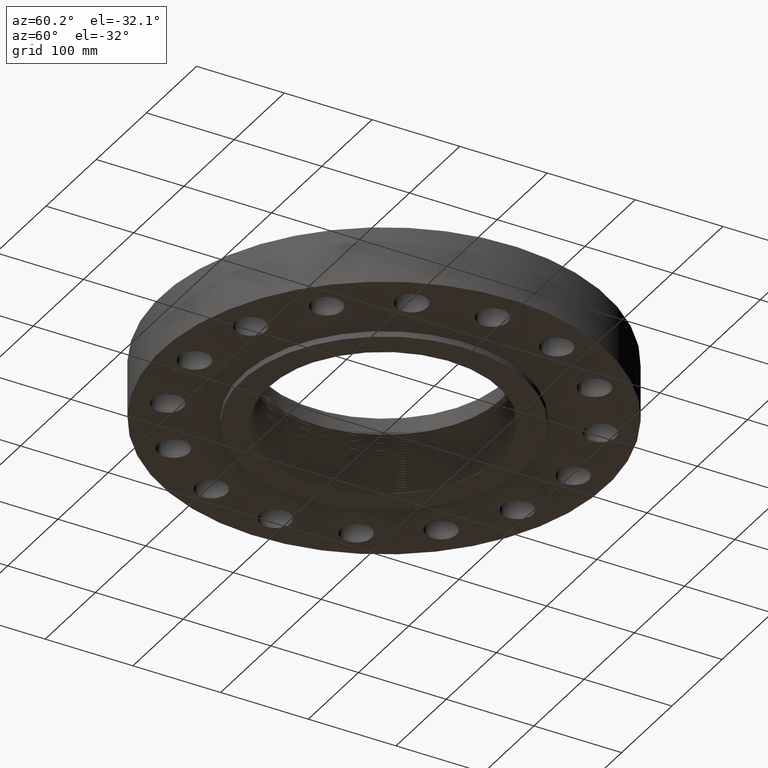
[diagram: clean part render]
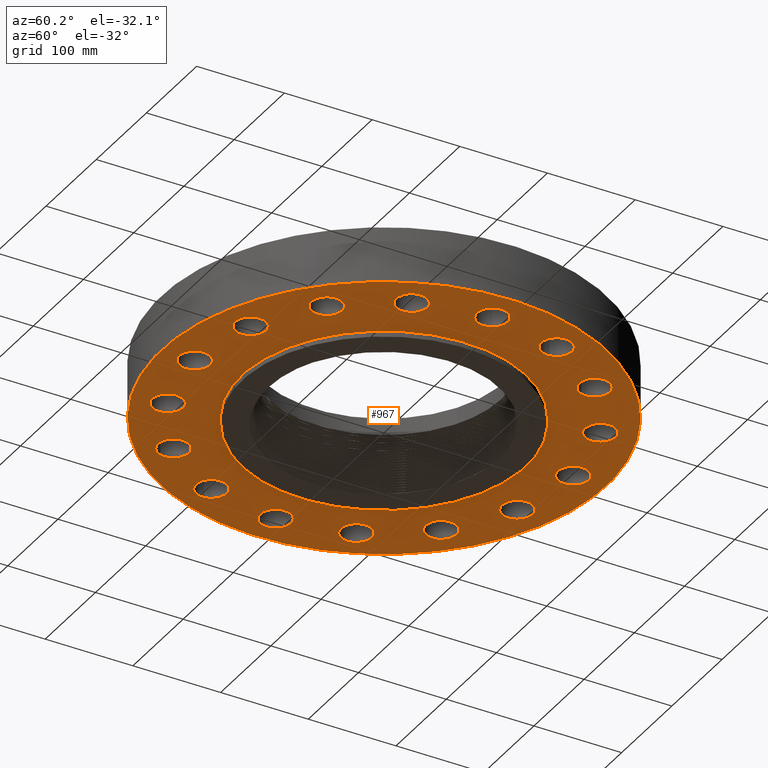
[diagram: same view with one face highlighted and labeled with its STEP entity id]
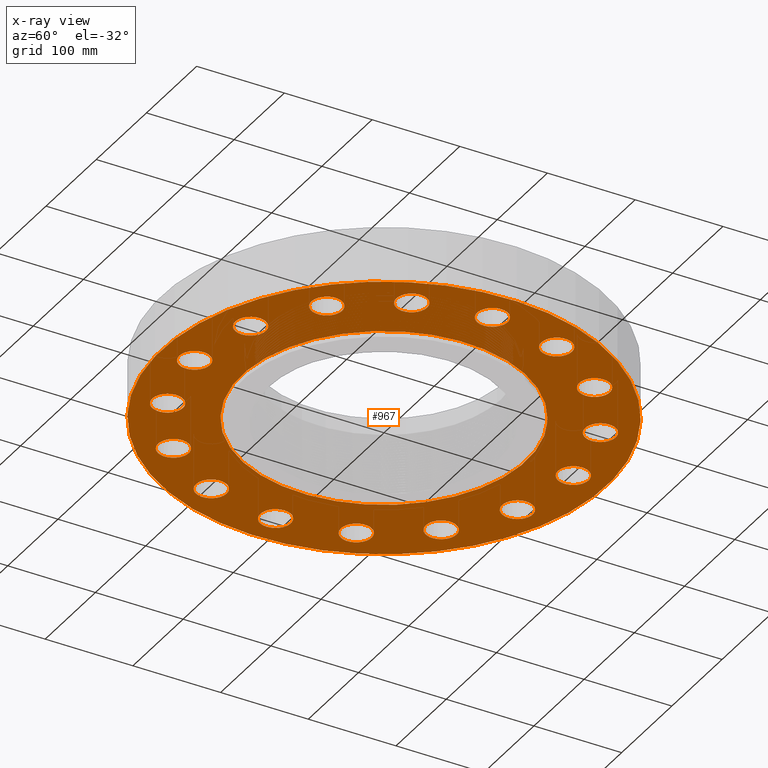
[diagram: x-ray of the same camera — body ghosted, the highlighted face saturated]
A machine part, auxiliary view. The second image highlights one B-rep face of the part: STEP entity #967.
The next image is the same camera in x-ray: the body ghosted, the highlighted face saturated — about 0% of this face is hidden behind the body in this view.
In plain terms, the highlighted planar face has unit normal (0, 0, -1).
Its self-contained STEP definition (entity closure, byte-faithful):
#396=AXIS2_PLACEMENT_3D('Circle Axis2P3D',#394,#395,$) ;
#422=AXIS2_PLACEMENT_3D('Circle Axis2P3D',#420,#421,$) ;
#444=AXIS2_PLACEMENT_3D('Circle Axis2P3D',#442,#443,$) ;
#479=AXIS2_PLACEMENT_3D('Circle Axis2P3D',#477,#478,$) ;
#651=AXIS2_PLACEMENT_3D('Circle Axis2P3D',#649,#650,$) ;
#670=AXIS2_PLACEMENT_3D('Circle Axis2P3D',#668,#669,$) ;
#683=AXIS2_PLACEMENT_3D('Plane Axis2P3D',#680,#681,#682) ;
#699=AXIS2_PLACEMENT_3D('Circle Axis2P3D',#697,#698,$) ;
#708=AXIS2_PLACEMENT_3D('Circle Axis2P3D',#706,#707,$) ;
#717=AXIS2_PLACEMENT_3D('Circle Axis2P3D',#715,#716,$) ;
#726=AXIS2_PLACEMENT_3D('Circle Axis2P3D',#724,#725,$) ;
#735=AXIS2_PLACEMENT_3D('Circle Axis2P3D',#733,#734,$) ;
#744=AXIS2_PLACEMENT_3D('Circle Axis2P3D',#742,#743,$) ;
#753=AXIS2_PLACEMENT_3D('Circle Axis2P3D',#751,#752,$) ;
#762=AXIS2_PLACEMENT_3D('Circle Axis2P3D',#760,#761,$) ;
#771=AXIS2_PLACEMENT_3D('Circle Axis2P3D',#769,#770,$) ;
#780=AXIS2_PLACEMENT_3D('Circle Axis2P3D',#778,#779,$) ;
#789=AXIS2_PLACEMENT_3D('Circle Axis2P3D',#787,#788,$) ;
#798=AXIS2_PLACEMENT_3D('Circle Axis2P3D',#796,#797,$) ;
#807=AXIS2_PLACEMENT_3D('Circle Axis2P3D',#805,#806,$) ;
#816=AXIS2_PLACEMENT_3D('Circle Axis2P3D',#814,#815,$) ;
#825=AXIS2_PLACEMENT_3D('Circle Axis2P3D',#823,#824,$) ;
#834=AXIS2_PLACEMENT_3D('Circle Axis2P3D',#832,#833,$) ;
#843=AXIS2_PLACEMENT_3D('Circle Axis2P3D',#841,#842,$) ;
#852=AXIS2_PLACEMENT_3D('Circle Axis2P3D',#850,#851,$) ;
#861=AXIS2_PLACEMENT_3D('Circle Axis2P3D',#859,#860,$) ;
#870=AXIS2_PLACEMENT_3D('Circle Axis2P3D',#868,#869,$) ;
#879=AXIS2_PLACEMENT_3D('Circle Axis2P3D',#877,#878,$) ;
#888=AXIS2_PLACEMENT_3D('Circle Axis2P3D',#886,#887,$) ;
#897=AXIS2_PLACEMENT_3D('Circle Axis2P3D',#895,#896,$) ;
#906=AXIS2_PLACEMENT_3D('Circle Axis2P3D',#904,#905,$) ;
#915=AXIS2_PLACEMENT_3D('Circle Axis2P3D',#913,#914,$) ;
#924=AXIS2_PLACEMENT_3D('Circle Axis2P3D',#922,#923,$) ;
#933=AXIS2_PLACEMENT_3D('Circle Axis2P3D',#931,#932,$) ;
#942=AXIS2_PLACEMENT_3D('Circle Axis2P3D',#940,#941,$) ;
#951=AXIS2_PLACEMENT_3D('Circle Axis2P3D',#949,#950,$) ;
#960=AXIS2_PLACEMENT_3D('Circle Axis2P3D',#958,#959,$) ;
#389=CARTESIAN_POINT('Vertex',(7.89446803233,0.330803621638,-2.79741234551E-016)) ;
#394=CARTESIAN_POINT('Axis2P3D Location',(8.50000000003,0.,0.)) ;
#398=CARTESIAN_POINT('Vertex',(9.10553196774,-0.330803621638,-2.79741234551E-016)) ;
#420=CARTESIAN_POINT('Axis2P3D Location',(8.50000000003,0.,0.)) ;
#442=CARTESIAN_POINT('Axis2P3D Location',(0.,0.,1.1189649382E-015)) ;
#446=CARTESIAN_POINT('Vertex',(-4.79425538606,-8.77582561894,1.1189649382E-015)) ;
#448=CARTESIAN_POINT('Vertex',(4.79425538606,8.77582561894,1.1189649382E-015)) ;
#477=CARTESIAN_POINT('Axis2P3D Location',(0.,0.,1.1189649382E-015)) ;
#646=CARTESIAN_POINT('Vertex',(-3.05633780861,-5.59458883207,5.59482469102E-016)) ;
#649=CARTESIAN_POINT('Axis2P3D Location',(0.,0.,8.39223703654E-016)) ;
#653=CARTESIAN_POINT('Vertex',(3.05633780861,5.59458883207,5.59482469102E-016)) ;
#668=CARTESIAN_POINT('Axis2P3D Location',(0.,0.,8.39223703654E-016)) ;
#680=CARTESIAN_POINT('Axis2P3D Location',(0.,6.37500000003,0.)) ;
#697=CARTESIAN_POINT('Axis2P3D Location',(7.85297602638,-3.25280917512,0.)) ;
#701=CARTESIAN_POINT('Vertex',(7.4201305005,-2.715459428,0.)) ;
#703=CARTESIAN_POINT('Vertex',(8.28582155226,-3.79015892224,-2.79741234551E-016)) ;
#706=CARTESIAN_POINT('Axis2P3D Location',(7.85297602638,-3.25280917512,0.)) ;
#715=CARTESIAN_POINT('Axis2P3D Location',(6.01040764011,-6.01040764011,0.)) ;
#719=CARTESIAN_POINT('Vertex',(5.81614536362,-5.34831839542,0.)) ;
#721=CARTESIAN_POINT('Vertex',(6.2046699166,-6.6724968848,-2.79741234551E-016)) ;
#724=CARTESIAN_POINT('Axis2P3D Location',(6.01040764011,-6.01040764011,0.)) ;
#733=CARTESIAN_POINT('Axis2P3D Location',(3.25280917512,-7.85297602638,0.)) ;
#737=CARTESIAN_POINT('Vertex',(3.32670481862,-7.16694436976,0.)) ;
#739=CARTESIAN_POINT('Vertex',(3.17891353161,-8.53900768299,-2.79741234551E-016)) ;
#742=CARTESIAN_POINT('Axis2P3D Location',(3.25280917512,-7.85297602638,0.)) ;
#751=CARTESIAN_POINT('Axis2P3D Location',(-9.79094320929E-016,-8.50000000003,0.)) ;
#755=CARTESIAN_POINT('Vertex',(0.330803621638,-7.89446803233,0.)) ;
#757=CARTESIAN_POINT('Vertex',(-0.330803621638,-9.10553196774,-2.79741234551E-016)) ;
#760=CARTESIAN_POINT('Axis2P3D Location',(-1.18890024684E-015,-8.50000000003,0.)) ;
#769=CARTESIAN_POINT('Axis2P3D Location',(-3.25280917512,-7.85297602638,0.)) ;
#773=CARTESIAN_POINT('Vertex',(-2.715459428,-7.4201305005,0.)) ;
#775=CARTESIAN_POINT('Vertex',(-3.79015892224,-8.28582155226,-2.79741234551E-016)) ;
#778=CARTESIAN_POINT('Axis2P3D Location',(-3.25280917512,-7.85297602638,0.)) ;
#787=CARTESIAN_POINT('Axis2P3D Location',(-6.01040764011,-6.01040764011,0.)) ;
#791=CARTESIAN_POINT('Vertex',(-5.34831839542,-5.81614536362,0.)) ;
#793=CARTESIAN_POINT('Vertex',(-6.6724968848,-6.2046699166,-2.79741234551E-016)) ;
#796=CARTESIAN_POINT('Axis2P3D Location',(-6.01040764011,-6.01040764011,0.)) ;
#805=CARTESIAN_POINT('Axis2P3D Location',(-7.85297602638,-3.25280917512,0.)) ;
#809=CARTESIAN_POINT('Vertex',(-7.16694436976,-3.32670481862,0.)) ;
#811=CARTESIAN_POINT('Vertex',(-8.53900768299,-3.17891353161,-2.79741234551E-016)) ;
#814=CARTESIAN_POINT('Axis2P3D Location',(-7.85297602638,-3.25280917512,0.)) ;
#823=CARTESIAN_POINT('Axis2P3D Location',(-8.50000000003,-1.1189649382E-015,0.)) ;
#827=CARTESIAN_POINT('Vertex',(-7.89446803233,-0.330803621638,0.)) ;
#829=CARTESIAN_POINT('Vertex',(-9.10553196774,0.330803621638,-2.79741234551E-016)) ;
#832=CARTESIAN_POINT('Axis2P3D Location',(-8.50000000003,-1.1189649382E-015,0.)) ;
#841=CARTESIAN_POINT('Axis2P3D Location',(-7.85297602638,3.25280917512,0.)) ;
#845=CARTESIAN_POINT('Vertex',(-7.4201305005,2.715459428,0.)) ;
#847=CARTESIAN_POINT('Vertex',(-8.28582155226,3.79015892224,-2.79741234551E-016)) ;
#850=CARTESIAN_POINT('Axis2P3D Location',(-7.85297602638,3.25280917512,0.)) ;
#859=CARTESIAN_POINT('Axis2P3D Location',(-6.01040764011,6.01040764011,0.)) ;
#863=CARTESIAN_POINT('Vertex',(-5.81614536362,5.34831839542,0.)) ;
#865=CARTESIAN_POINT('Vertex',(-6.2046699166,6.6724968848,-2.79741234551E-016)) ;
#868=CARTESIAN_POINT('Axis2P3D Location',(-6.01040764011,6.01040764011,0.)) ;
#877=CARTESIAN_POINT('Axis2P3D Location',(-3.25280917512,7.85297602638,0.)) ;
#881=CARTESIAN_POINT('Vertex',(-3.32670481862,7.16694436976,0.)) ;
#883=CARTESIAN_POINT('Vertex',(-3.17891353161,8.53900768299,-2.79741234551E-016)) ;
#886=CARTESIAN_POINT('Axis2P3D Location',(-3.25280917512,7.85297602638,0.)) ;
#895=CARTESIAN_POINT('Axis2P3D Location',(-5.59482469102E-016,8.50000000003,0.)) ;
#899=CARTESIAN_POINT('Vertex',(-0.330803621638,7.89446803233,0.)) ;
#901=CARTESIAN_POINT('Vertex',(0.330803621638,9.10553196774,-2.79741234551E-016)) ;
#904=CARTESIAN_POINT('Axis2P3D Location',(-2.79741234551E-016,8.50000000003,0.)) ;
#913=CARTESIAN_POINT('Axis2P3D Location',(3.25280917512,7.85297602638,0.)) ;
#917=CARTESIAN_POINT('Vertex',(2.715459428,7.4201305005,0.)) ;
#919=CARTESIAN_POINT('Vertex',(3.79015892224,8.28582155226,-2.51767111096E-015)) ;
#922=CARTESIAN_POINT('Axis2P3D Location',(3.25280917512,7.85297602638,0.)) ;
#931=CARTESIAN_POINT('Axis2P3D Location',(6.01040764011,6.01040764011,0.)) ;
#935=CARTESIAN_POINT('Vertex',(5.34831839542,5.81614536362,0.)) ;
#937=CARTESIAN_POINT('Vertex',(6.6724968848,6.2046699166,-2.79741234551E-016)) ;
#940=CARTESIAN_POINT('Axis2P3D Location',(6.01040764011,6.01040764011,0.)) ;
#949=CARTESIAN_POINT('Axis2P3D Location',(7.85297602638,3.25280917512,0.)) ;
#953=CARTESIAN_POINT('Vertex',(7.16694436976,3.32670481862,0.)) ;
#955=CARTESIAN_POINT('Vertex',(8.53900768299,3.17891353161,-2.79741234551E-016)) ;
#958=CARTESIAN_POINT('Axis2P3D Location',(7.85297602638,3.25280917512,0.)) ;
#395=DIRECTION('Axis2P3D Direction',(0.,-0.,-0.0393700787402)) ;
#421=DIRECTION('Axis2P3D Direction',(0.,-0.,-0.0393700787402)) ;
#443=DIRECTION('Axis2P3D Direction',(0.,0.,-0.0393700787402)) ;
#478=DIRECTION('Axis2P3D Direction',(0.,0.,-0.0393700787402)) ;
#650=DIRECTION('Axis2P3D Direction',(0.,0.,-0.0393700787402)) ;
#669=DIRECTION('Axis2P3D Direction',(0.,0.,-0.0393700787402)) ;
#681=DIRECTION('Axis2P3D Direction',(0.,0.,-0.0393700787402)) ;
#682=DIRECTION('Axis2P3D XDirection',(0.0393700787402,0.,0.)) ;
#698=DIRECTION('Axis2P3D Direction',(0.,0.,-0.0393700787402)) ;
#707=DIRECTION('Axis2P3D Direction',(0.,0.,-0.0393700787402)) ;
#716=DIRECTION('Axis2P3D Direction',(0.,0.,-0.0393700787402)) ;
#725=DIRECTION('Axis2P3D Direction',(0.,0.,-0.0393700787402)) ;
#734=DIRECTION('Axis2P3D Direction',(0.,0.,-0.0393700787402)) ;
#743=DIRECTION('Axis2P3D Direction',(0.,0.,-0.0393700787402)) ;
#752=DIRECTION('Axis2P3D Direction',(0.,0.,-0.0393700787402)) ;
#761=DIRECTION('Axis2P3D Direction',(0.,0.,-0.0393700787402)) ;
#770=DIRECTION('Axis2P3D Direction',(0.,0.,-0.0393700787402)) ;
#779=DIRECTION('Axis2P3D Direction',(0.,0.,-0.0393700787402)) ;
#788=DIRECTION('Axis2P3D Direction',(0.,0.,-0.0393700787402)) ;
#797=DIRECTION('Axis2P3D Direction',(0.,0.,-0.0393700787402)) ;
#806=DIRECTION('Axis2P3D Direction',(0.,0.,-0.0393700787402)) ;
#815=DIRECTION('Axis2P3D Direction',(0.,0.,-0.0393700787402)) ;
#824=DIRECTION('Axis2P3D Direction',(0.,0.,-0.0393700787402)) ;
#833=DIRECTION('Axis2P3D Direction',(0.,0.,-0.0393700787402)) ;
#842=DIRECTION('Axis2P3D Direction',(0.,0.,-0.0393700787402)) ;
#851=DIRECTION('Axis2P3D Direction',(0.,0.,-0.0393700787402)) ;
#860=DIRECTION('Axis2P3D Direction',(0.,0.,-0.0393700787402)) ;
#869=DIRECTION('Axis2P3D Direction',(0.,0.,-0.0393700787402)) ;
#878=DIRECTION('Axis2P3D Direction',(0.,0.,-0.0393700787402)) ;
#887=DIRECTION('Axis2P3D Direction',(0.,0.,-0.0393700787402)) ;
#896=DIRECTION('Axis2P3D Direction',(0.,0.,-0.0393700787402)) ;
#905=DIRECTION('Axis2P3D Direction',(0.,0.,-0.0393700787402)) ;
#914=DIRECTION('Axis2P3D Direction',(0.,0.,-0.0393700787402)) ;
#923=DIRECTION('Axis2P3D Direction',(0.,0.,-0.0393700787402)) ;
#932=DIRECTION('Axis2P3D Direction',(0.,0.,-0.0393700787402)) ;
#941=DIRECTION('Axis2P3D Direction',(0.,0.,-0.0393700787402)) ;
#950=DIRECTION('Axis2P3D Direction',(0.,0.,-0.0393700787402)) ;
#959=DIRECTION('Axis2P3D Direction',(0.,0.,-0.0393700787402)) ;
#686=ORIENTED_EDGE('',*,*,#450,.T.) ;
#687=ORIENTED_EDGE('',*,*,#481,.T.) ;
#690=ORIENTED_EDGE('',*,*,#424,.F.) ;
#691=ORIENTED_EDGE('',*,*,#400,.F.) ;
#694=ORIENTED_EDGE('',*,*,#672,.F.) ;
#695=ORIENTED_EDGE('',*,*,#655,.F.) ;
#712=ORIENTED_EDGE('',*,*,#705,.F.) ;
#713=ORIENTED_EDGE('',*,*,#710,.F.) ;
#730=ORIENTED_EDGE('',*,*,#723,.F.) ;
#731=ORIENTED_EDGE('',*,*,#728,.F.) ;
#748=ORIENTED_EDGE('',*,*,#741,.F.) ;
#749=ORIENTED_EDGE('',*,*,#746,.F.) ;
#766=ORIENTED_EDGE('',*,*,#759,.F.) ;
#767=ORIENTED_EDGE('',*,*,#764,.F.) ;
#784=ORIENTED_EDGE('',*,*,#777,.F.) ;
#785=ORIENTED_EDGE('',*,*,#782,.F.) ;
#802=ORIENTED_EDGE('',*,*,#795,.F.) ;
#803=ORIENTED_EDGE('',*,*,#800,.F.) ;
#820=ORIENTED_EDGE('',*,*,#813,.F.) ;
#821=ORIENTED_EDGE('',*,*,#818,.F.) ;
#838=ORIENTED_EDGE('',*,*,#831,.F.) ;
#839=ORIENTED_EDGE('',*,*,#836,.F.) ;
#856=ORIENTED_EDGE('',*,*,#849,.F.) ;
#857=ORIENTED_EDGE('',*,*,#854,.F.) ;
#874=ORIENTED_EDGE('',*,*,#867,.F.) ;
#875=ORIENTED_EDGE('',*,*,#872,.F.) ;
#892=ORIENTED_EDGE('',*,*,#885,.F.) ;
#893=ORIENTED_EDGE('',*,*,#890,.F.) ;
#910=ORIENTED_EDGE('',*,*,#903,.F.) ;
#911=ORIENTED_EDGE('',*,*,#908,.F.) ;
#928=ORIENTED_EDGE('',*,*,#921,.F.) ;
#929=ORIENTED_EDGE('',*,*,#926,.F.) ;
#946=ORIENTED_EDGE('',*,*,#939,.F.) ;
#947=ORIENTED_EDGE('',*,*,#944,.F.) ;
#964=ORIENTED_EDGE('',*,*,#957,.F.) ;
#965=ORIENTED_EDGE('',*,*,#962,.F.) ;
#692=FACE_BOUND('',#689,.T.) ;
#696=FACE_BOUND('',#693,.T.) ;
#714=FACE_BOUND('',#711,.T.) ;
#732=FACE_BOUND('',#729,.T.) ;
#750=FACE_BOUND('',#747,.T.) ;
#768=FACE_BOUND('',#765,.T.) ;
#786=FACE_BOUND('',#783,.T.) ;
#804=FACE_BOUND('',#801,.T.) ;
#822=FACE_BOUND('',#819,.T.) ;
#840=FACE_BOUND('',#837,.T.) ;
#858=FACE_BOUND('',#855,.T.) ;
#876=FACE_BOUND('',#873,.T.) ;
#894=FACE_BOUND('',#891,.T.) ;
#912=FACE_BOUND('',#909,.T.) ;
#930=FACE_BOUND('',#927,.T.) ;
#948=FACE_BOUND('',#945,.T.) ;
#966=FACE_BOUND('',#963,.T.) ;
#967=ADVANCED_FACE('PartBody',(#688,#692,#696,#714,#732,#750,#768,#786,#804,#822,#840,#858,#876,#894,#912,#930,#948,#966),#684,.T.) ;
#397=CIRCLE('generated circle',#396,0.690000000003) ;
#423=CIRCLE('generated circle',#422,0.690000000003) ;
#445=CIRCLE('generated circle',#444,10.) ;
#480=CIRCLE('generated circle',#479,10.) ;
#652=CIRCLE('generated circle',#651,6.37500000003) ;
#671=CIRCLE('generated circle',#670,6.37500000003) ;
#700=CIRCLE('generated circle',#699,0.690000000003) ;
#709=CIRCLE('generated circle',#708,0.690000000003) ;
#718=CIRCLE('generated circle',#717,0.690000000003) ;
#727=CIRCLE('generated circle',#726,0.690000000003) ;
#736=CIRCLE('generated circle',#735,0.690000000003) ;
#745=CIRCLE('generated circle',#744,0.690000000003) ;
#754=CIRCLE('generated circle',#753,0.690000000003) ;
#763=CIRCLE('generated circle',#762,0.690000000003) ;
#772=CIRCLE('generated circle',#771,0.690000000003) ;
#781=CIRCLE('generated circle',#780,0.690000000003) ;
#790=CIRCLE('generated circle',#789,0.690000000003) ;
#799=CIRCLE('generated circle',#798,0.690000000003) ;
#808=CIRCLE('generated circle',#807,0.690000000003) ;
#817=CIRCLE('generated circle',#816,0.690000000003) ;
#826=CIRCLE('generated circle',#825,0.690000000003) ;
#835=CIRCLE('generated circle',#834,0.690000000003) ;
#844=CIRCLE('generated circle',#843,0.690000000003) ;
#853=CIRCLE('generated circle',#852,0.690000000003) ;
#862=CIRCLE('generated circle',#861,0.690000000003) ;
#871=CIRCLE('generated circle',#870,0.690000000003) ;
#880=CIRCLE('generated circle',#879,0.690000000003) ;
#889=CIRCLE('generated circle',#888,0.690000000003) ;
#898=CIRCLE('generated circle',#897,0.690000000003) ;
#907=CIRCLE('generated circle',#906,0.690000000003) ;
#916=CIRCLE('generated circle',#915,0.690000000003) ;
#925=CIRCLE('generated circle',#924,0.690000000003) ;
#934=CIRCLE('generated circle',#933,0.690000000003) ;
#943=CIRCLE('generated circle',#942,0.690000000003) ;
#952=CIRCLE('generated circle',#951,0.690000000003) ;
#961=CIRCLE('generated circle',#960,0.690000000003) ;
#400=EDGE_CURVE('',#390,#399,#397,.T.) ;
#424=EDGE_CURVE('',#399,#390,#423,.T.) ;
#450=EDGE_CURVE('',#447,#449,#445,.T.) ;
#481=EDGE_CURVE('',#449,#447,#480,.T.) ;
#655=EDGE_CURVE('',#647,#654,#652,.T.) ;
#672=EDGE_CURVE('',#654,#647,#671,.T.) ;
#705=EDGE_CURVE('',#702,#704,#700,.T.) ;
#710=EDGE_CURVE('',#704,#702,#709,.T.) ;
#723=EDGE_CURVE('',#720,#722,#718,.T.) ;
#728=EDGE_CURVE('',#722,#720,#727,.T.) ;
#741=EDGE_CURVE('',#738,#740,#736,.T.) ;
#746=EDGE_CURVE('',#740,#738,#745,.T.) ;
#759=EDGE_CURVE('',#756,#758,#754,.T.) ;
#764=EDGE_CURVE('',#758,#756,#763,.T.) ;
#777=EDGE_CURVE('',#774,#776,#772,.T.) ;
#782=EDGE_CURVE('',#776,#774,#781,.T.) ;
#795=EDGE_CURVE('',#792,#794,#790,.T.) ;
#800=EDGE_CURVE('',#794,#792,#799,.T.) ;
#813=EDGE_CURVE('',#810,#812,#808,.T.) ;
#818=EDGE_CURVE('',#812,#810,#817,.T.) ;
#831=EDGE_CURVE('',#828,#830,#826,.T.) ;
#836=EDGE_CURVE('',#830,#828,#835,.T.) ;
#849=EDGE_CURVE('',#846,#848,#844,.T.) ;
#854=EDGE_CURVE('',#848,#846,#853,.T.) ;
#867=EDGE_CURVE('',#864,#866,#862,.T.) ;
#872=EDGE_CURVE('',#866,#864,#871,.T.) ;
#885=EDGE_CURVE('',#882,#884,#880,.T.) ;
#890=EDGE_CURVE('',#884,#882,#889,.T.) ;
#903=EDGE_CURVE('',#900,#902,#898,.T.) ;
#908=EDGE_CURVE('',#902,#900,#907,.T.) ;
#921=EDGE_CURVE('',#918,#920,#916,.T.) ;
#926=EDGE_CURVE('',#920,#918,#925,.T.) ;
#939=EDGE_CURVE('',#936,#938,#934,.T.) ;
#944=EDGE_CURVE('',#938,#936,#943,.T.) ;
#957=EDGE_CURVE('',#954,#956,#952,.T.) ;
#962=EDGE_CURVE('',#956,#954,#961,.T.) ;
#685=EDGE_LOOP('',(#686,#687)) ;
#689=EDGE_LOOP('',(#690,#691)) ;
#693=EDGE_LOOP('',(#694,#695)) ;
#711=EDGE_LOOP('',(#712,#713)) ;
#729=EDGE_LOOP('',(#730,#731)) ;
#747=EDGE_LOOP('',(#748,#749)) ;
#765=EDGE_LOOP('',(#766,#767)) ;
#783=EDGE_LOOP('',(#784,#785)) ;
#801=EDGE_LOOP('',(#802,#803)) ;
#819=EDGE_LOOP('',(#820,#821)) ;
#837=EDGE_LOOP('',(#838,#839)) ;
#855=EDGE_LOOP('',(#856,#857)) ;
#873=EDGE_LOOP('',(#874,#875)) ;
#891=EDGE_LOOP('',(#892,#893)) ;
#909=EDGE_LOOP('',(#910,#911)) ;
#927=EDGE_LOOP('',(#928,#929)) ;
#945=EDGE_LOOP('',(#946,#947)) ;
#963=EDGE_LOOP('',(#964,#965)) ;
#688=FACE_OUTER_BOUND('',#685,.T.) ;
#684=PLANE('',#683) ;
#390=VERTEX_POINT('',#389) ;
#399=VERTEX_POINT('',#398) ;
#447=VERTEX_POINT('',#446) ;
#449=VERTEX_POINT('',#448) ;
#647=VERTEX_POINT('',#646) ;
#654=VERTEX_POINT('',#653) ;
#702=VERTEX_POINT('',#701) ;
#704=VERTEX_POINT('',#703) ;
#720=VERTEX_POINT('',#719) ;
#722=VERTEX_POINT('',#721) ;
#738=VERTEX_POINT('',#737) ;
#740=VERTEX_POINT('',#739) ;
#756=VERTEX_POINT('',#755) ;
#758=VERTEX_POINT('',#757) ;
#774=VERTEX_POINT('',#773) ;
#776=VERTEX_POINT('',#775) ;
#792=VERTEX_POINT('',#791) ;
#794=VERTEX_POINT('',#793) ;
#810=VERTEX_POINT('',#809) ;
#812=VERTEX_POINT('',#811) ;
#828=VERTEX_POINT('',#827) ;
#830=VERTEX_POINT('',#829) ;
#846=VERTEX_POINT('',#845) ;
#848=VERTEX_POINT('',#847) ;
#864=VERTEX_POINT('',#863) ;
#866=VERTEX_POINT('',#865) ;
#882=VERTEX_POINT('',#881) ;
#884=VERTEX_POINT('',#883) ;
#900=VERTEX_POINT('',#899) ;
#902=VERTEX_POINT('',#901) ;
#918=VERTEX_POINT('',#917) ;
#920=VERTEX_POINT('',#919) ;
#936=VERTEX_POINT('',#935) ;
#938=VERTEX_POINT('',#937) ;
#954=VERTEX_POINT('',#953) ;
#956=VERTEX_POINT('',#955) ;